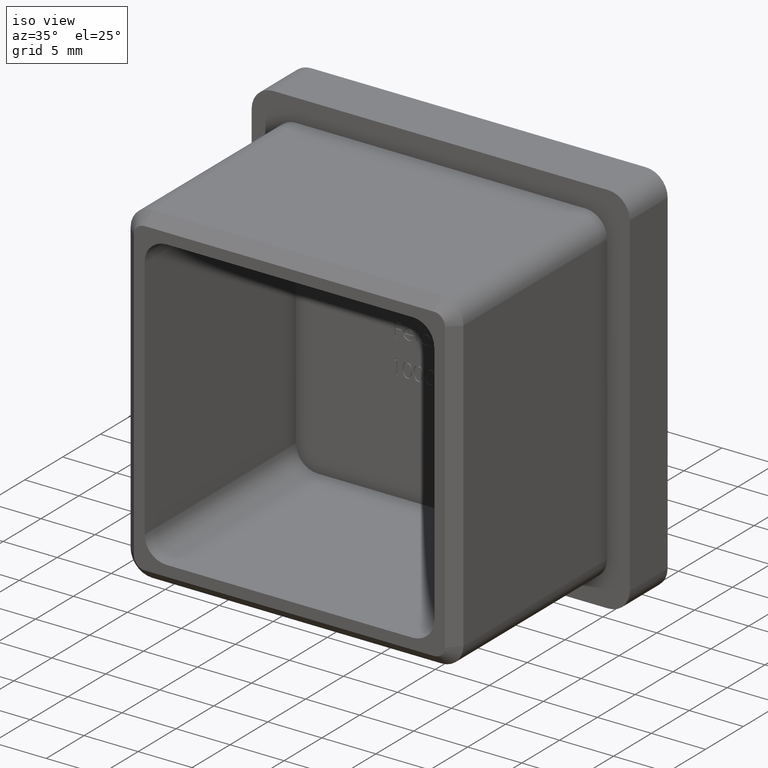
[diagram: clean part render]
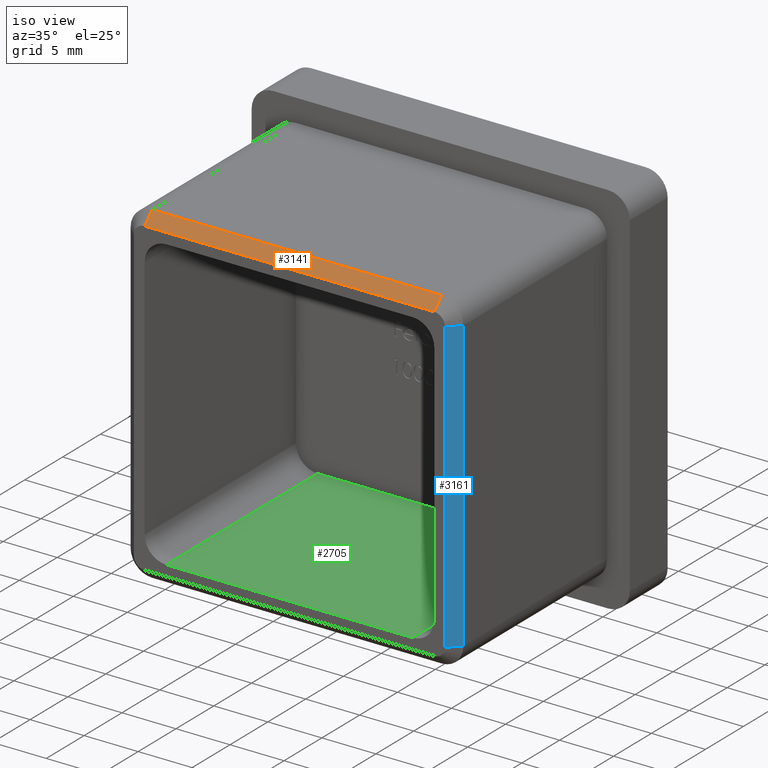
[diagram: same view with three faces highlighted in distinct colors, each labeled with its STEP entity id]
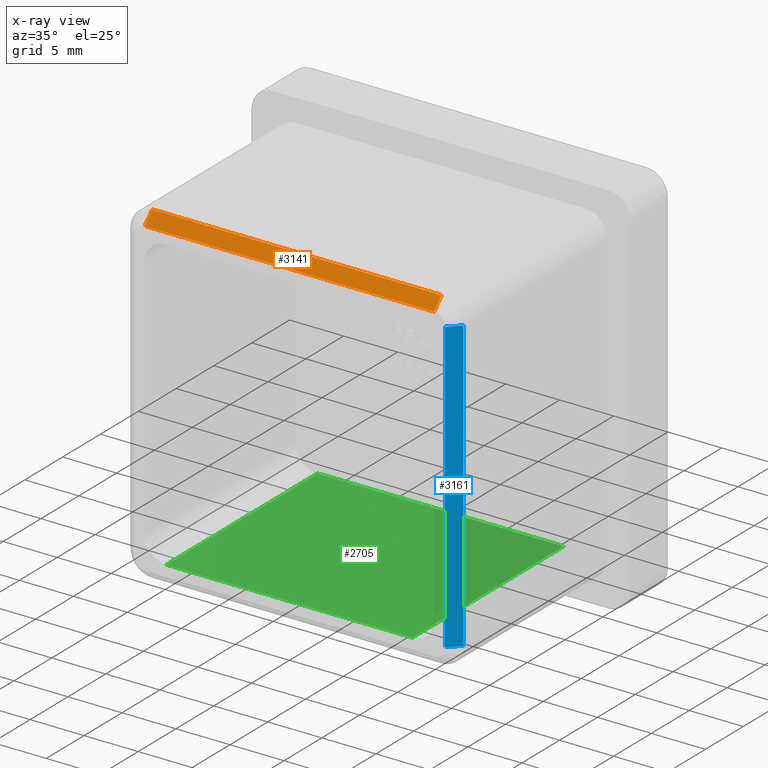
[diagram: x-ray of the same camera — body ghosted, the three highlighted faces saturated]
A machine part, iso view with three faces highlighted in distinct colors.
The next image is the same camera in x-ray (body ghosted, the three faces saturated) — at least one of them is partly hidden behind the body in this view.
Their STEP definitions:

[orange] entity #3141 — the highlighted planar face has unit normal (0, -0.7071, 0.7071).
#397 = DIRECTION ( 'NONE',  ( 0.0000000000000000000, -0.7071067811865474600, -0.7071067811865474600 ) ) ;
#480 = CARTESIAN_POINT ( 'NONE',  ( 13.39999999999999100, -19.00000000000000000, 15.40000000000000000 ) ) ;
#543 = VERTEX_POINT ( 'NONE', #4646 ) ;
#985 = DIRECTION ( 'NONE',  ( 0.0000000000000000000, -0.7071067811865474600, -0.7071067811865474600 ) ) ;
#1255 = LINE ( 'NONE', #10780, #7397 ) ;
#1791 = VERTEX_POINT ( 'NONE', #14064 ) ;
#1838 = LINE ( 'NONE', #6456, #7595 ) ;
#1856 = LINE ( 'NONE', #480, #6242 ) ;
#1992 = EDGE_LOOP ( 'NONE', ( #12846, #12213, #15012, #3629 ) ) ;
#3141 = ADVANCED_FACE ( 'NONE', ( #9670 ), #12551, .T. ) ;
#3629 = ORIENTED_EDGE ( 'NONE', *, *, #10613, .F. ) ;
#4510 = CARTESIAN_POINT ( 'NONE',  ( -13.40000000000000000, -19.00000000000000000, 15.40000000000000000 ) ) ;
#4646 = CARTESIAN_POINT ( 'NONE',  ( -13.40000000000000000, -19.00000000000000000, 15.40000000000000000 ) ) ;
#5196 = CARTESIAN_POINT ( 'NONE',  ( 0.0000000000000000000, -20.00000000000000000, 14.40000000000000000 ) ) ;
#5209 = VERTEX_POINT ( 'NONE', #13234 ) ;
#6242 = VECTOR ( 'NONE', #11585, 1000.000000000000000 ) ;
#6455 = DIRECTION ( 'NONE',  ( 1.000000000000000000, 0.0000000000000000000, 0.0000000000000000000 ) ) ;
#6456 = CARTESIAN_POINT ( 'NONE',  ( 13.39999999999999900, -19.00000000000000000, 15.40000000000000000 ) ) ;
#6998 = LINE ( 'NONE', #4510, #7198 ) ;
#7198 = VECTOR ( 'NONE', #985, 1000.000000000000100 ) ;
#7397 = VECTOR ( 'NONE', #10670, 1000.000000000000000 ) ;
#7595 = VECTOR ( 'NONE', #397, 1000.000000000000100 ) ;
#7791 = VERTEX_POINT ( 'NONE', #13378 ) ;
#9670 = FACE_OUTER_BOUND ( 'NONE', #1992, .T. ) ;
#10613 = EDGE_CURVE ( 'NONE', #543, #5209, #1856, .T. ) ;
#10670 = DIRECTION ( 'NONE',  ( -1.000000000000000000, 0.0000000000000000000, 0.0000000000000000000 ) ) ;
#10780 = CARTESIAN_POINT ( 'NONE',  ( -13.40000000000000200, -20.00000000000000000, 14.40000000000000000 ) ) ;
#11036 = EDGE_CURVE ( 'NONE', #5209, #1791, #1838, .T. ) ;
#11258 = EDGE_CURVE ( 'NONE', #1791, #7791, #1255, .T. ) ;
#11585 = DIRECTION ( 'NONE',  ( 1.000000000000000000, 0.0000000000000000000, 0.0000000000000000000 ) ) ;
#11709 = EDGE_CURVE ( 'NONE', #543, #7791, #6998, .T. ) ;
#12213 = ORIENTED_EDGE ( 'NONE', *, *, #11258, .F. ) ;
#12551 = PLANE ( 'NONE',  #14655 ) ;
#12846 = ORIENTED_EDGE ( 'NONE', *, *, #11709, .T. ) ;
#13234 = CARTESIAN_POINT ( 'NONE',  ( 13.39999999999999900, -19.00000000000000000, 15.40000000000000000 ) ) ;
#13378 = CARTESIAN_POINT ( 'NONE',  ( -13.40000000000000000, -20.00000000000000000, 14.40000000000000000 ) ) ;
#13800 = DIRECTION ( 'NONE',  ( 0.0000000000000000000, -0.7071067811865475700, 0.7071067811865475700 ) ) ;
#14064 = CARTESIAN_POINT ( 'NONE',  ( 13.39999999999999900, -20.00000000000000000, 14.40000000000000000 ) ) ;
#14655 = AXIS2_PLACEMENT_3D ( 'NONE', #5196, #13800, #6455 ) ;
#15012 = ORIENTED_EDGE ( 'NONE', *, *, #11036, .F. ) ;

[blue] entity #3161 — the highlighted planar face has unit normal (0.7071, -0.7071, 0).
#111 = LINE ( 'NONE', #10127, #3740 ) ;
#216 = EDGE_CURVE ( 'NONE', #15266, #8486, #9697, .T. ) ;
#1196 = LINE ( 'NONE', #1498, #13477 ) ;
#1498 = CARTESIAN_POINT ( 'NONE',  ( 15.39999999999999900, -19.00000000000000000, 13.40000000000000000 ) ) ;
#3088 = ORIENTED_EDGE ( 'NONE', *, *, #11012, .F. ) ;
#3161 = ADVANCED_FACE ( 'NONE', ( #3926 ), #14835, .T. ) ;
#3197 = CARTESIAN_POINT ( 'NONE',  ( 15.40000000000000000, -19.00000000000000000, -13.39999999999999900 ) ) ;
#3740 = VECTOR ( 'NONE', #3927, 1000.000000000000000 ) ;
#3743 = CARTESIAN_POINT ( 'NONE',  ( 14.40000000000000000, -20.00000000000000000, 0.0000000000000000000 ) ) ;
#3926 = FACE_OUTER_BOUND ( 'NONE', #12815, .T. ) ;
#3927 = DIRECTION ( 'NONE',  ( 0.0000000000000000000, 0.0000000000000000000, -1.000000000000000000 ) ) ;
#5058 = DIRECTION ( 'NONE',  ( -0.7071067811865474600, -0.7071067811865474600, 0.0000000000000000000 ) ) ;
#5336 = EDGE_CURVE ( 'NONE', #15266, #5810, #7356, .T. ) ;
#5810 = VERTEX_POINT ( 'NONE', #9244 ) ;
#6363 = DIRECTION ( 'NONE',  ( 0.0000000000000000000, 0.0000000000000000000, 1.000000000000000000 ) ) ;
#6542 = EDGE_CURVE ( 'NONE', #6785, #5810, #1196, .T. ) ;
#6785 = VERTEX_POINT ( 'NONE', #14332 ) ;
#7339 = DIRECTION ( 'NONE',  ( 0.0000000000000000000, 0.0000000000000000000, -1.000000000000000000 ) ) ;
#7356 = LINE ( 'NONE', #13884, #11742 ) ;
#7512 = DIRECTION ( 'NONE',  ( 0.7071067811865475700, -0.7071067811865475700, 0.0000000000000000000 ) ) ;
#7811 = AXIS2_PLACEMENT_3D ( 'NONE', #3743, #7512, #7339 ) ;
#8037 = ORIENTED_EDGE ( 'NONE', *, *, #6542, .T. ) ;
#8486 = VERTEX_POINT ( 'NONE', #3197 ) ;
#9244 = CARTESIAN_POINT ( 'NONE',  ( 14.39999999999999900, -20.00000000000000000, 13.40000000000000000 ) ) ;
#9697 = LINE ( 'NONE', #15859, #12196 ) ;
#10005 = CARTESIAN_POINT ( 'NONE',  ( 14.40000000000000000, -20.00000000000000000, -13.39999999999999900 ) ) ;
#10127 = CARTESIAN_POINT ( 'NONE',  ( 15.40000000000000000, -19.00000000000000000, -13.39999999999999100 ) ) ;
#11012 = EDGE_CURVE ( 'NONE', #6785, #8486, #111, .T. ) ;
#11742 = VECTOR ( 'NONE', #6363, 1000.000000000000000 ) ;
#12196 = VECTOR ( 'NONE', #14861, 1000.000000000000100 ) ;
#12815 = EDGE_LOOP ( 'NONE', ( #13007, #3088, #8037, #15892 ) ) ;
#13007 = ORIENTED_EDGE ( 'NONE', *, *, #216, .T. ) ;
#13477 = VECTOR ( 'NONE', #5058, 1000.000000000000100 ) ;
#13884 = CARTESIAN_POINT ( 'NONE',  ( 14.40000000000000000, -20.00000000000000000, 13.40000000000000200 ) ) ;
#14332 = CARTESIAN_POINT ( 'NONE',  ( 15.40000000000000000, -19.00000000000000000, 13.40000000000000000 ) ) ;
#14835 = PLANE ( 'NONE',  #7811 ) ;
#14861 = DIRECTION ( 'NONE',  ( 0.7071067811865474600, 0.7071067811865474600, 0.0000000000000000000 ) ) ;
#15266 = VERTEX_POINT ( 'NONE', #10005 ) ;
#15859 = CARTESIAN_POINT ( 'NONE',  ( 14.40000000000000000, -20.00000000000000000, -13.39999999999999900 ) ) ;
#15892 = ORIENTED_EDGE ( 'NONE', *, *, #5336, .F. ) ;

[green] entity #2705 — the highlighted planar face has unit normal (-0, 0, 1).
#832 = ORIENTED_EDGE ( 'NONE', *, *, #13149, .T. ) ;
#1401 = ORIENTED_EDGE ( 'NONE', *, *, #4624, .T. ) ;
#1964 = CARTESIAN_POINT ( 'NONE',  ( 11.40000000000000200, 0.0000000000000000000, -13.40000000000000000 ) ) ;
#2044 = AXIS2_PLACEMENT_3D ( 'NONE', #5829, #4593, #14320 ) ;
#2140 = EDGE_LOOP ( 'NONE', ( #4460, #832, #11349, #1401 ) ) ;
#2217 = FACE_OUTER_BOUND ( 'NONE', #2140, .T. ) ;
#2705 = ADVANCED_FACE ( 'NONE', ( #2217 ), #14210, .T. ) ;
#3284 = VERTEX_POINT ( 'NONE', #14945 ) ;
#3684 = VECTOR ( 'NONE', #9096, 1000.000000000000000 ) ;
#3702 = LINE ( 'NONE', #8111, #13107 ) ;
#3997 = CARTESIAN_POINT ( 'NONE',  ( -13.40000000000000000, -0.0000000000000000000, -13.40000000000000000 ) ) ;
#4460 = ORIENTED_EDGE ( 'NONE', *, *, #13851, .T. ) ;
#4515 = DIRECTION ( 'NONE',  ( 0.0000000000000000000, 1.000000000000000000, -0.0000000000000000000 ) ) ;
#4593 = DIRECTION ( 'NONE',  ( -0.0000000000000000000, 0.0000000000000000000, 1.000000000000000000 ) ) ;
#4624 = EDGE_CURVE ( 'NONE', #7494, #3284, #5815, .T. ) ;
#4915 = CARTESIAN_POINT ( 'NONE',  ( 11.40000000000000200, -20.00000000000000000, -13.40000000000000000 ) ) ;
#5800 = VECTOR ( 'NONE', #4515, 1000.000000000000000 ) ;
#5815 = LINE ( 'NONE', #11264, #7375 ) ;
#5829 = CARTESIAN_POINT ( 'NONE',  ( -13.40000000000000000, -20.00000000000000000, -13.40000000000000000 ) ) ;
#6572 = EDGE_CURVE ( 'NONE', #7494, #8554, #10201, .T. ) ;
#7375 = VECTOR ( 'NONE', #13539, 1000.000000000000000 ) ;
#7494 = VERTEX_POINT ( 'NONE', #12692 ) ;
#8111 = CARTESIAN_POINT ( 'NONE',  ( -13.40000000000000000, -20.00000000000000000, -13.40000000000000000 ) ) ;
#8529 = LINE ( 'NONE', #1964, #5800 ) ;
#8554 = VERTEX_POINT ( 'NONE', #14144 ) ;
#9096 = DIRECTION ( 'NONE',  ( 1.000000000000000000, 0.0000000000000000000, 0.0000000000000000000 ) ) ;
#10201 = LINE ( 'NONE', #3997, #3684 ) ;
#11264 = CARTESIAN_POINT ( 'NONE',  ( -11.40000000000000000, -20.00000000000000000, -13.40000000000000000 ) ) ;
#11349 = ORIENTED_EDGE ( 'NONE', *, *, #6572, .F. ) ;
#12692 = CARTESIAN_POINT ( 'NONE',  ( -11.40000000000000000, 0.0000000000000000000, -13.40000000000000000 ) ) ;
#13107 = VECTOR ( 'NONE', #15648, 1000.000000000000000 ) ;
#13149 = EDGE_CURVE ( 'NONE', #13362, #8554, #8529, .T. ) ;
#13362 = VERTEX_POINT ( 'NONE', #4915 ) ;
#13539 = DIRECTION ( 'NONE',  ( -0.0000000000000000000, -1.000000000000000000, 0.0000000000000000000 ) ) ;
#13851 = EDGE_CURVE ( 'NONE', #3284, #13362, #3702, .T. ) ;
#14144 = CARTESIAN_POINT ( 'NONE',  ( 11.40000000000000200, 0.0000000000000000000, -13.40000000000000000 ) ) ;
#14210 = PLANE ( 'NONE',  #2044 ) ;
#14320 = DIRECTION ( 'NONE',  ( 1.000000000000000000, 0.0000000000000000000, 0.0000000000000000000 ) ) ;
#14945 = CARTESIAN_POINT ( 'NONE',  ( -11.40000000000000000, -20.00000000000000000, -13.40000000000000000 ) ) ;
#15648 = DIRECTION ( 'NONE',  ( 1.000000000000000000, 0.0000000000000000000, 0.0000000000000000000 ) ) ;